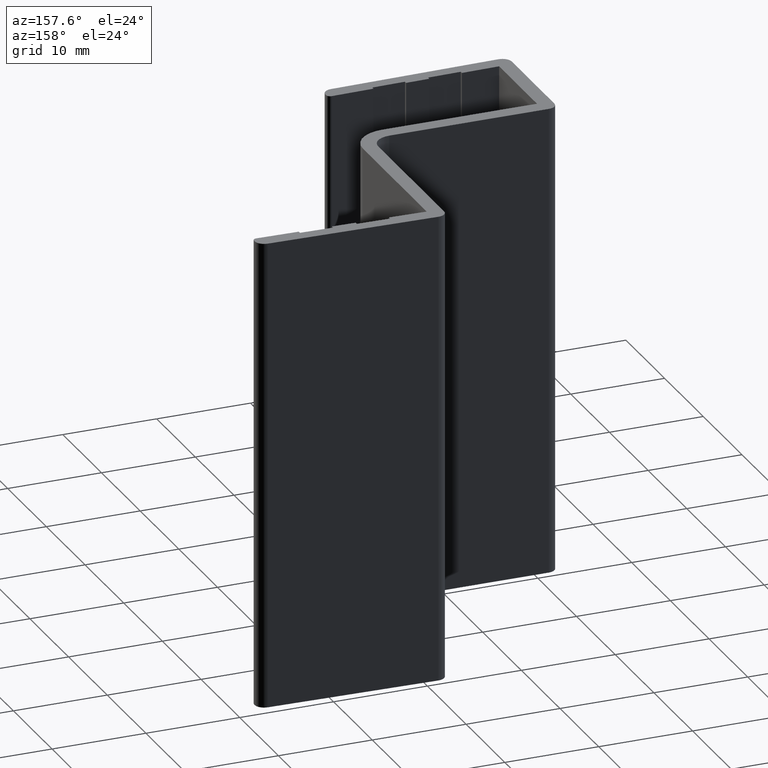
[diagram: clean part render]
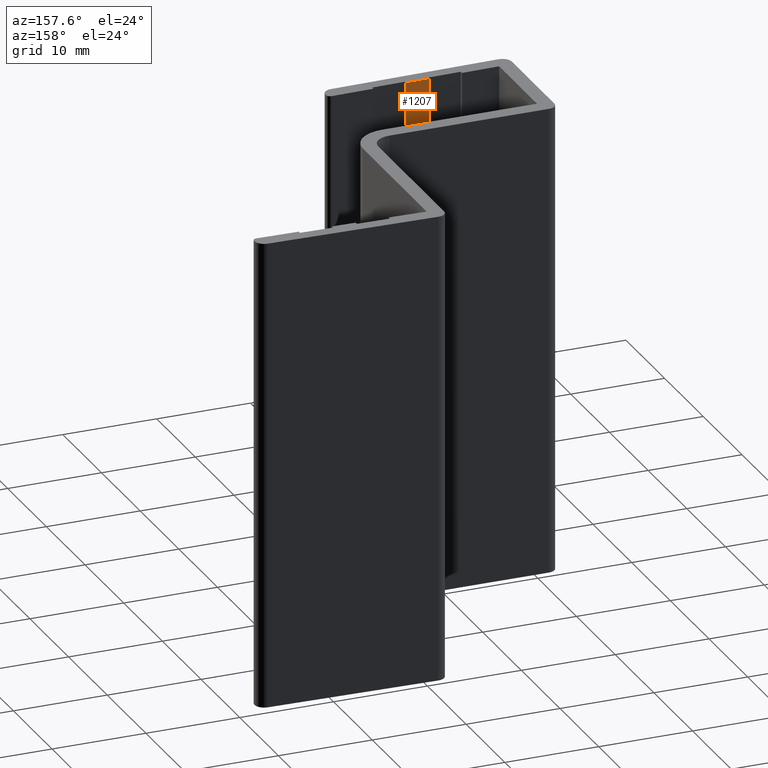
[diagram: same view with one face highlighted and labeled with its STEP entity id]
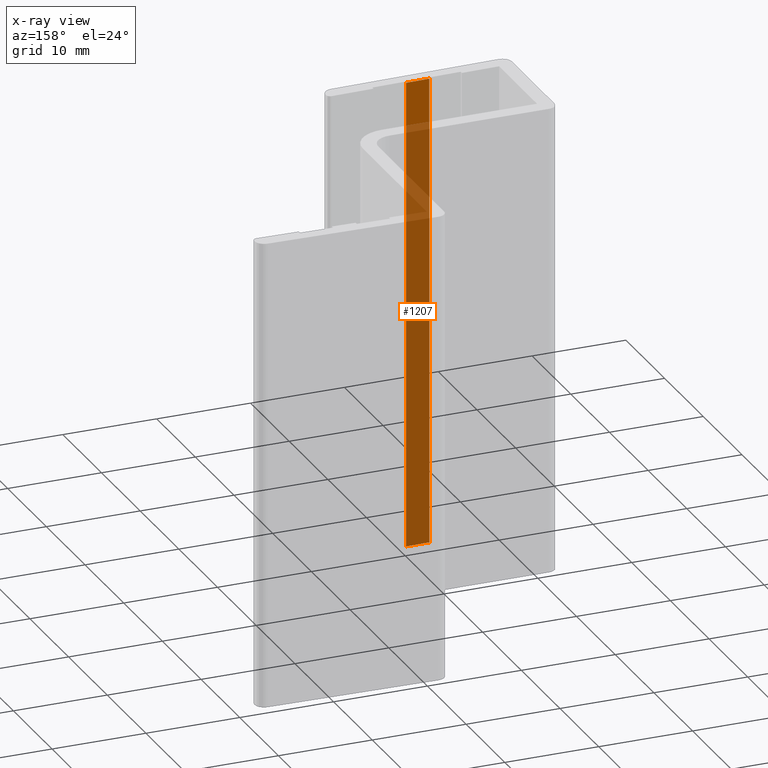
[diagram: x-ray of the same camera — body ghosted, the highlighted face saturated]
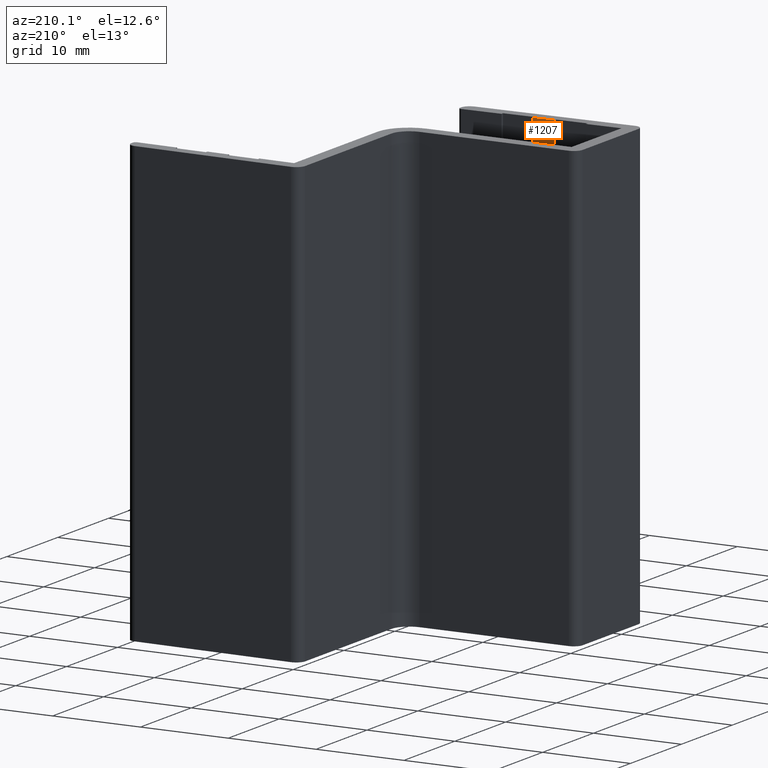
[diagram: same view with one face highlighted and labeled with its STEP entity id]
A machine part, auxiliary view. The second image highlights one B-rep face of the part: STEP entity #1207.
The next image is the same camera in x-ray: the body ghosted, the highlighted face saturated — about 91% of this face is hidden behind the body in this view.
A second angle (auxiliary view) of the same face is appended — the face is thin or edge-on in the first view.
In plain terms, the highlighted planar face has unit normal (0.0217, -0.9998, 0).
Its self-contained STEP definition (entity closure, byte-faithful):
#2 = VERTEX_POINT ( 'NONE', #823 ) ;
#37 = ORIENTED_EDGE ( 'NONE', *, *, #891, .T. ) ;
#89 = LINE ( 'NONE', #696, #1145 ) ;
#148 = ORIENTED_EDGE ( 'NONE', *, *, #1009, .T. ) ;
#301 = EDGE_LOOP ( 'NONE', ( #830, #479, #37, #148 ) ) ;
#340 = DIRECTION ( 'NONE',  ( -0.0000000000000000000, -0.0000000000000000000, 1.000000000000000000 ) ) ;
#354 = LINE ( 'NONE', #503, #1201 ) ;
#366 = CARTESIAN_POINT ( 'NONE',  ( 9.998582732943498600, 0.2173604941944235200, 50.00000000000000000 ) ) ;
#451 = CARTESIAN_POINT ( 'NONE',  ( 7.500000000000000000, 0.1630434782608700400, 50.00000000000000000 ) ) ;
#473 = VERTEX_POINT ( 'NONE', #680 ) ;
#479 = ORIENTED_EDGE ( 'NONE', *, *, #774, .F. ) ;
#489 = VECTOR ( 'NONE', #799, 1000.000000000000000 ) ;
#503 = CARTESIAN_POINT ( 'NONE',  ( 7.500000000000000000, 0.1630434782608700400, 0.0000000000000000000 ) ) ;
#528 = CARTESIAN_POINT ( 'NONE',  ( 0.0000000000000000000, 0.0000000000000000000, 0.0000000000000000000 ) ) ;
#541 = DIRECTION ( 'NONE',  ( -0.9997637888239162600, -0.02173399540921557400, -0.0000000000000000000 ) ) ;
#545 = VERTEX_POINT ( 'NONE', #451 ) ;
#567 = VERTEX_POINT ( 'NONE', #366 ) ;
#603 = CARTESIAN_POINT ( 'NONE',  ( 0.0000000000000000000, 0.0000000000000000000, 50.00000000000000000 ) ) ;
#619 = DIRECTION ( 'NONE',  ( 0.9997637888239162600, 0.02173399540921557000, 0.0000000000000000000 ) ) ;
#623 = DIRECTION ( 'NONE',  ( 0.02173399540921557000, -0.9997637888239162600, 0.0000000000000000000 ) ) ;
#680 = CARTESIAN_POINT ( 'NONE',  ( 9.998582732943498600, 0.2173604941944235200, 0.0000000000000000000 ) ) ;
#696 = CARTESIAN_POINT ( 'NONE',  ( 0.0000000000000000000, 0.0000000000000000000, 50.00000000000000000 ) ) ;
#766 = DIRECTION ( 'NONE',  ( -0.0000000000000000000, -0.0000000000000000000, 1.000000000000000000 ) ) ;
#774 = EDGE_CURVE ( 'NONE', #473, #567, #1216, .T. ) ;
#789 = LINE ( 'NONE', #528, #489 ) ;
#799 = DIRECTION ( 'NONE',  ( -0.9997637888239162600, -0.02173399540921557400, -0.0000000000000000000 ) ) ;
#823 = CARTESIAN_POINT ( 'NONE',  ( 7.500000000000000000, 0.1630434782608700400, 0.0000000000000000000 ) ) ;
#830 = ORIENTED_EDGE ( 'NONE', *, *, #1030, .F. ) ;
#891 = EDGE_CURVE ( 'NONE', #473, #2, #789, .T. ) ;
#997 = PLANE ( 'NONE',  #1211 ) ;
#1009 = EDGE_CURVE ( 'NONE', #2, #545, #354, .T. ) ;
#1027 = CARTESIAN_POINT ( 'NONE',  ( 9.998582732943498600, 0.2173604941944235200, 0.0000000000000000000 ) ) ;
#1030 = EDGE_CURVE ( 'NONE', #567, #545, #89, .T. ) ;
#1085 = FACE_OUTER_BOUND ( 'NONE', #301, .T. ) ;
#1145 = VECTOR ( 'NONE', #541, 1000.000000000000000 ) ;
#1186 = VECTOR ( 'NONE', #340, 1000.000000000000000 ) ;
#1201 = VECTOR ( 'NONE', #766, 1000.000000000000000 ) ;
#1207 = ADVANCED_FACE ( 'NONE', ( #1085 ), #997, .F. ) ;
#1211 = AXIS2_PLACEMENT_3D ( 'NONE', #603, #623, #619 ) ;
#1216 = LINE ( 'NONE', #1027, #1186 ) ;